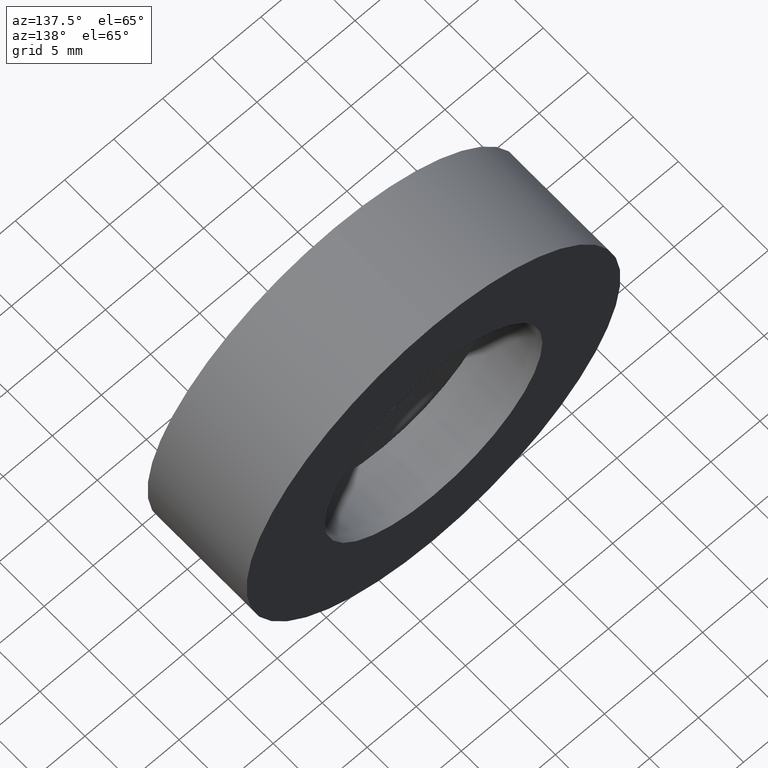
[diagram: clean part render]
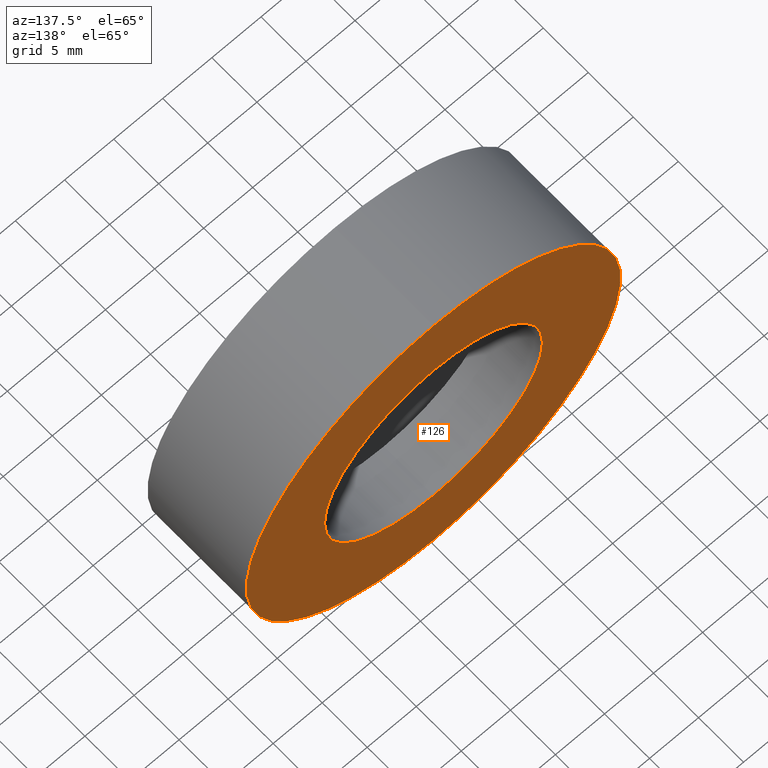
[diagram: same view with one face highlighted and labeled with its STEP entity id]
A machine part, auxiliary view. The second image highlights one B-rep face of the part: STEP entity #126.
In plain terms, the highlighted planar face has unit normal (0, -1, 0).
Its self-contained STEP definition (entity closure, byte-faithful):
#14 = EDGE_LOOP ( 'NONE', ( #301, #315 ) ) ;
#26 = AXIS2_PLACEMENT_3D ( 'NONE', #108, #195, #185 ) ;
#37 = FACE_OUTER_BOUND ( 'NONE', #14, .T. ) ;
#58 = VERTEX_POINT ( 'NONE', #151 ) ;
#72 = VERTEX_POINT ( 'NONE', #369 ) ;
#80 = DIRECTION ( 'NONE',  ( -0.0000000000000000000, 1.000000000000000000, -0.0000000000000000000 ) ) ;
#89 = DIRECTION ( 'NONE',  ( -0.0000000000000000000, 1.000000000000000000, -0.0000000000000000000 ) ) ;
#99 = VERTEX_POINT ( 'NONE', #249 ) ;
#101 = CIRCLE ( 'NONE', #26, 19.05000000000000400 ) ;
#108 = CARTESIAN_POINT ( 'NONE',  ( 0.0000000000000000000, 10.99999999999999600, 0.0000000000000000000 ) ) ;
#116 = AXIS2_PLACEMENT_3D ( 'NONE', #118, #292, #130 ) ;
#118 = CARTESIAN_POINT ( 'NONE',  ( 0.0000000000000000000, 10.99999999999999600, 0.0000000000000000000 ) ) ;
#124 = CARTESIAN_POINT ( 'NONE',  ( 11.10000000000000700, 11.00000000000000000, 0.0000000000000000000 ) ) ;
#126 = ADVANCED_FACE ( 'NONE', ( #411, #37 ), #294, .F. ) ;
#129 = AXIS2_PLACEMENT_3D ( 'NONE', #344, #80, #374 ) ;
#130 = DIRECTION ( 'NONE',  ( 0.0000000000000000000, 0.0000000000000000000, 1.000000000000000000 ) ) ;
#131 = ORIENTED_EDGE ( 'NONE', *, *, #357, .F. ) ;
#151 = CARTESIAN_POINT ( 'NONE',  ( 1.359357947053563100E-015, 10.99999999999999600, -11.10000000000000700 ) ) ;
#157 = DIRECTION ( 'NONE',  ( 0.0000000000000000000, 0.0000000000000000000, 1.000000000000000000 ) ) ;
#185 = DIRECTION ( 'NONE',  ( 0.0000000000000000000, 0.0000000000000000000, 1.000000000000000000 ) ) ;
#195 = DIRECTION ( 'NONE',  ( -0.0000000000000000000, 1.000000000000000000, -0.0000000000000000000 ) ) ;
#201 = EDGE_LOOP ( 'NONE', ( #297, #131 ) ) ;
#225 = DIRECTION ( 'NONE',  ( 0.0000000000000000000, -1.000000000000000000, 0.0000000000000000000 ) ) ;
#226 = EDGE_CURVE ( 'NONE', #99, #58, #368, .T. ) ;
#237 = EDGE_CURVE ( 'NONE', #72, #257, #101, .T. ) ;
#249 = CARTESIAN_POINT ( 'NONE',  ( 0.0000000000000000000, 10.99999999999999600, 11.10000000000000700 ) ) ;
#255 = CIRCLE ( 'NONE', #276, 11.10000000000000700 ) ;
#257 = VERTEX_POINT ( 'NONE', #262 ) ;
#262 = CARTESIAN_POINT ( 'NONE',  ( 2.332952152375708400E-015, 10.99999999999999600, -19.05000000000000400 ) ) ;
#276 = AXIS2_PLACEMENT_3D ( 'NONE', #309, #89, #157 ) ;
#292 = DIRECTION ( 'NONE',  ( -0.0000000000000000000, 1.000000000000000000, -0.0000000000000000000 ) ) ;
#294 = PLANE ( 'NONE',  #365 ) ;
#297 = ORIENTED_EDGE ( 'NONE', *, *, #226, .F. ) ;
#301 = ORIENTED_EDGE ( 'NONE', *, *, #237, .T. ) ;
#309 = CARTESIAN_POINT ( 'NONE',  ( 0.0000000000000000000, 10.99999999999999600, 0.0000000000000000000 ) ) ;
#315 = ORIENTED_EDGE ( 'NONE', *, *, #371, .T. ) ;
#344 = CARTESIAN_POINT ( 'NONE',  ( 0.0000000000000000000, 10.99999999999999600, 0.0000000000000000000 ) ) ;
#357 = EDGE_CURVE ( 'NONE', #58, #99, #255, .T. ) ;
#365 = AXIS2_PLACEMENT_3D ( 'NONE', #124, #225, #392 ) ;
#368 = CIRCLE ( 'NONE', #129, 11.10000000000000700 ) ;
#369 = CARTESIAN_POINT ( 'NONE',  ( 0.0000000000000000000, 10.99999999999999600, 19.05000000000000400 ) ) ;
#371 = EDGE_CURVE ( 'NONE', #257, #72, #393, .T. ) ;
#374 = DIRECTION ( 'NONE',  ( 0.0000000000000000000, 0.0000000000000000000, 1.000000000000000000 ) ) ;
#392 = DIRECTION ( 'NONE',  ( 0.0000000000000000000, -0.0000000000000000000, -1.000000000000000000 ) ) ;
#393 = CIRCLE ( 'NONE', #116, 19.05000000000000400 ) ;
#411 = FACE_BOUND ( 'NONE', #201, .T. ) ;